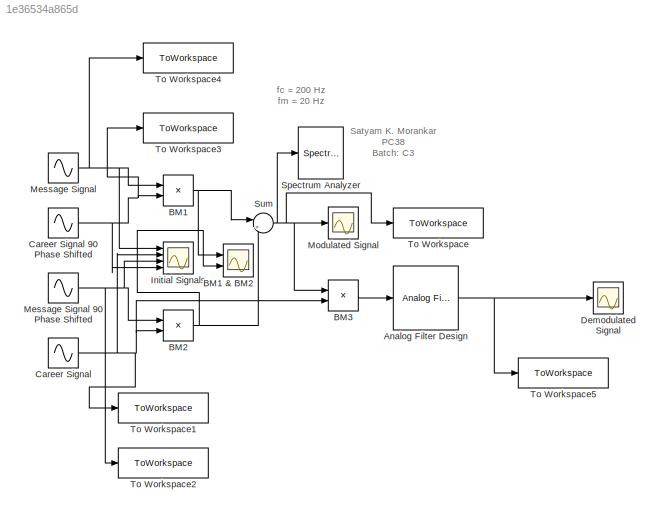
MODEL slx_1e36534a865d
KIND model
CONFIG AbsTol = auto
CONFIG EnableMultiTasking = off
CONFIG FixedStep = auto
CONFIG MaxStep = auto
CONFIG MinStep = auto
CONFIG RelTol = 1e-3
CONFIG SampleTimeConstraint = Unconstrained
CONFIG SolverName = VariableStepAuto
CONFIG StartTime = 0.0
CONFIG StopTime = 10.0
BLOCK [Reference] Analog Filter Design  REF=dsparch4/Analog
Filter Design
  Ports = [1, 1]
  SourceBlock = dsparch4/Analog\nFilter Design
  SourceProductBaseCode = DS
  SourceType = Analog Filter Design
BLOCK [Product] BM1
  Ports = [2, 1]
BLOCK [Scope] BM1 & BM2
  Floating = off
  NumInputPorts = 2
  Ports = [2]
  ScopeSpecificationString = Simulink.scopes.TimeScopeBlockCfg('CurrentConfiguration', extmgr.ConfigurationSet(extmgr.Configuration('Core','General UI',true),extmgr.Configuration('Core','Source UI',true),extmgr.Configuration('Sources','WiredSimulink',true,'DataLoggingVariableName','ScopeData1'),extmgr.Configuration('Visuals','Time Domain',true,'TimeAxisLabels','All','SerializedDisplays',{struct('MinYLimReal','-1.2499','MaxYLi...<+2068ch>
BLOCK [Product] BM2
  Ports = [2, 1]
BLOCK [Product] BM3
  Ports = [2, 1]
BLOCK [Sin] Career Signal
  Frequency = 2*pi*carr
  Phase = pi/2
  Ports = [0, 1]
  SampleTime = 1/5000
BLOCK [Sin] Career Signal 90 Phase Shifted
  Frequency = 2*pi*carr
  Ports = [0, 1]
  SampleTime = 1/5000
BLOCK [Scope] Demodulated Signal
  Floating = off
  NumInputPorts = 1
  Ports = [1]
  ScopeSpecificationString = Simulink.scopes.TimeScopeBlockCfg('CurrentConfiguration', extmgr.ConfigurationSet(extmgr.Configuration('Core','General UI',true),extmgr.Configuration('Core','Source UI',true),extmgr.Configuration('Sources','WiredSimulink',true,'DataLoggingVariableName','ScopeData2'),extmgr.Configuration('Visuals','Time Domain',true,'SerializedDisplays',{struct('MinYLimReal','-0.62334','MaxYLimReal','0.62641','YLab...<+1557ch>
BLOCK [Scope] Initial Signals
  Floating = off
  NumInputPorts = 4
  Ports = [4]
  ScopeSpecificationString = Simulink.scopes.TimeScopeBlockCfg('CurrentConfiguration', extmgr.ConfigurationSet(extmgr.Configuration('Core','General UI',true),extmgr.Configuration('Core','Source UI',true),extmgr.Configuration('Sources','WiredSimulink',true,'DataLoggingVariableName','ScopeData3'),extmgr.Configuration('Visuals','Time Domain',true,'TimeAxisLabels','All','SerializedDisplays',{struct('MinYLimReal','-1.25','MaxYLimR...<+3653ch>
BLOCK [Sin] Message Signal
  Frequency = 2*pi*mssg
  Ports = [0, 1]
  SampleTime = 1/5000
BLOCK [Sin] Message Signal 90 Phase Shifted
  Frequency = 2*pi*mssg
  Phase = pi/2
  Ports = [0, 1]
  SampleTime = 1/5000
BLOCK [Scope] Modulated Signal
  Floating = off
  NumInputPorts = 1
  Ports = [1]
  ScopeSpecificationString = Simulink.scopes.TimeScopeBlockCfg('CurrentConfiguration', extmgr.ConfigurationSet(extmgr.Configuration('Core','General UI',true),extmgr.Configuration('Core','Source UI',true),extmgr.Configuration('Sources','WiredSimulink',true),extmgr.Configuration('Visuals','Time Domain',true,'SerializedDisplays',{struct('MinYLimReal','-1.2499','MaxYLimReal','1.2499','YLabelReal','Amplitude','MinYLimMag','0.00000...<+1489ch>
BLOCK [SpectrumAnalyzer] Spectrum Analyzer
  Ports = [1]
  ScopeSpecificationString = spbscopes.SpectrumAnalyzerBlockCfg('CurrentConfiguration', extmgr.ConfigurationSet(extmgr.Configuration('Core','General UI',true),extmgr.Configuration('Core','Source UI',true),extmgr.Configuration('Sources','WiredSimulink',true),extmgr.Configuration('Visuals','Spectrum',true,'AxesProperties',struct('Color',{[0 0 0],[0 0 0]},'XColor',{[0.686274509803922 0.686274509803922 0.686274509803922],[0.68627...<+2398ch>
BLOCK [Sum] Sum
  Inputs = |++
  Ports = [2, 1]
BLOCK [ToWorkspace] To Workspace
  FixptAsFi = on
  MaxDataPoints = inf
  Ports = [1]
  SampleTime = -1
  SaveFormat = Timeseries
  VariableName = Modulated
BLOCK [ToWorkspace] To Workspace1
  FixptAsFi = on
  MaxDataPoints = inf
  Ports = [1]
  SampleTime = -1
  SaveFormat = Timeseries
  VariableName = carr_sgnl
BLOCK [ToWorkspace] To Workspace2
  FixptAsFi = on
  MaxDataPoints = inf
  Ports = [1]
  SampleTime = -1
  SaveFormat = Timeseries
  VariableName = Mess_sgnl_90
BLOCK [ToWorkspace] To Workspace3
  FixptAsFi = on
  MaxDataPoints = inf
  Ports = [1]
  SampleTime = -1
  SaveFormat = Timeseries
  VariableName = carr_sgnl_90
BLOCK [ToWorkspace] To Workspace4
  FixptAsFi = on
  MaxDataPoints = inf
  Ports = [1]
  SampleTime = -1
  SaveFormat = Timeseries
  VariableName = Mess_sgnl
BLOCK [ToWorkspace] To Workspace5
  FixptAsFi = on
  MaxDataPoints = inf
  Ports = [1]
  SampleTime = -1
  SaveFormat = Timeseries
  VariableName = Demodulated
ANNOTATION (root): Satyam K. Morankar PC38 Batch: C3
ANNOTATION (root): fc = 200 Hz fm = 20 Hz
NET Analog Filter Design:1 -> Demodulated Signal:1, To Workspace5:1
NET BM1:1 -> BM1 & BM2:1, Sum:1
NET BM2:1 -> BM1 & BM2:2, Sum:2
LINE BM3:1 -> Analog Filter Design:1
NET Career Signal 90 Phase Shifted:1 -> BM1:2, Initial Signals:4, To Workspace3:1
NET Career Signal:1 -> BM2:2, BM3:2, Initial Signals:2, To Workspace1:1
NET Message Signal 90 Phase Shifted:1 -> BM2:1, Initial Signals:3, To Workspace2:1
NET Message Signal:1 -> BM1:1, Initial Signals:1, To Workspace4:1
NET Sum:1 -> BM3:1, Modulated Signal:1, Spectrum Analyzer:1, To Workspace:1
note: NET lines group one-source signal fan-out (src -> all destinations, sorted); 1:1 wires keep LINE
